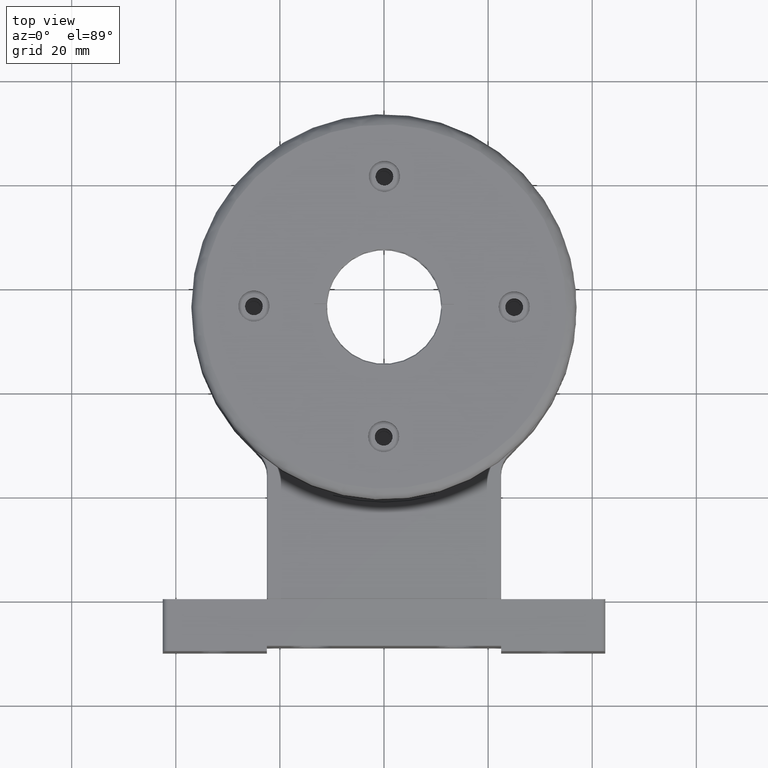
[diagram: clean part render]
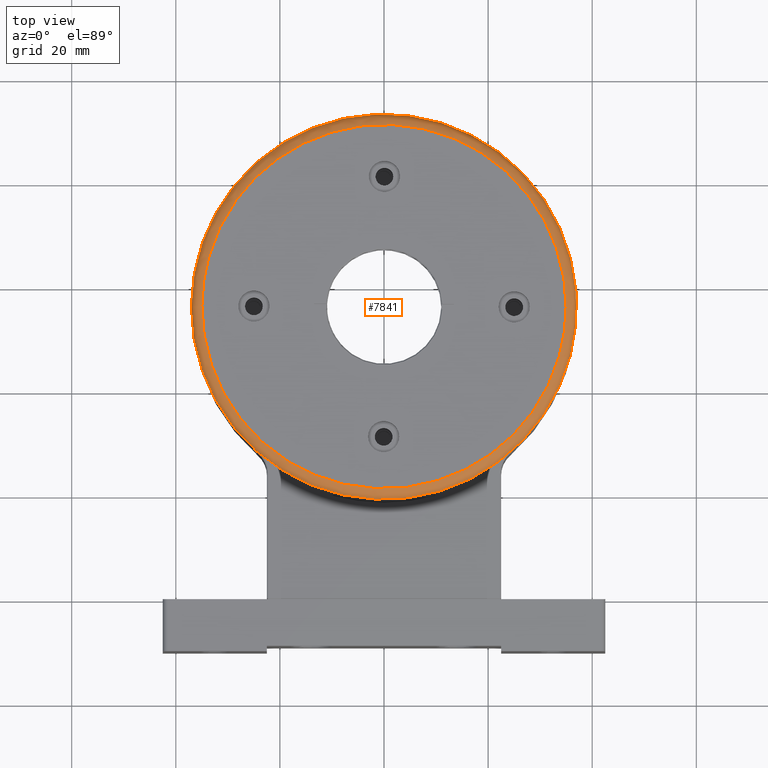
[diagram: same view with one face highlighted and labeled with its STEP entity id]
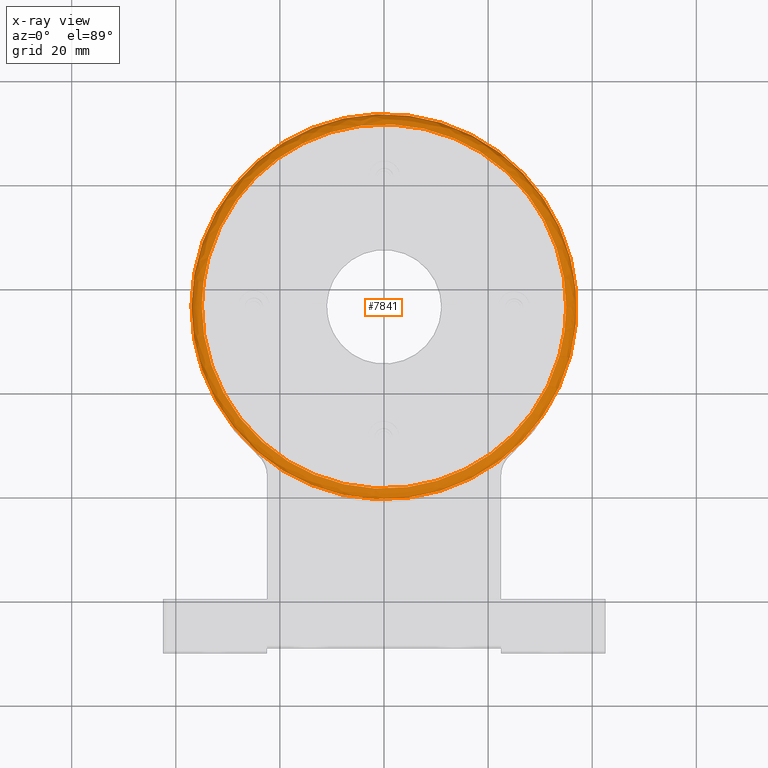
[diagram: x-ray of the same camera — body ghosted, the highlighted face saturated]
A machine part, top view. The second image highlights one B-rep face of the part: STEP entity #7841.
The next image is the same camera in x-ray: the body ghosted, the highlighted face saturated — about 0% of this face is hidden behind the body in this view.
In plain terms, the highlighted face is a freeform B-spline surface patch.
Its self-contained STEP definition (entity closure, byte-faithful):
#20 = CARTESIAN_POINT ( 'NONE',  ( 13.11857359999238959, 88.44848916850000364, 39.99999999999994316 ) ) ;
#22 = CARTESIAN_POINT ( 'NONE',  ( -7.445305812659806399, 21.79892618697274287, 39.99999999999995026 ) ) ;
#32 = FACE_OUTER_BOUND ( 'NONE', #7508, .T. ) ;
#83 = CARTESIAN_POINT ( 'NONE',  ( 32.75982494111806886, 68.32194760139236678, 39.99999999999989342 ) ) ;
#86 = CARTESIAN_POINT ( 'NONE',  ( 6.133215838620476923, 21.54154989447624757, 39.99999999999993605 ) ) ;
#157 = CARTESIAN_POINT ( 'NONE',  ( 29.90462150346780135, 74.18990699711497427, 39.99999999999989342 ) ) ;
#159 = CARTESIAN_POINT ( 'NONE',  ( -13.05002223999467148, 23.52388181536817058, 39.99999999999997868 ) ) ;
#175 = CARTESIAN_POINT ( 'NONE',  ( -34.99984086352086621, 56.10554396340679517, 40.00000000000003553 ) ) ;
#227 = CARTESIAN_POINT ( 'NONE',  ( 13.46049257120940545, 88.30874447367253310, 39.99999999999994316 ) ) ;
#229 = CARTESIAN_POINT ( 'NONE',  ( 18.18990699708898973, 26.09537849651978547, 39.99999999999990763 ) ) ;
#244 = CARTESIAN_POINT ( 'NONE',  ( 36.17140841191813649, 55.89092310960256071, 39.99999999999988631 ) ) ;
#291 = CARTESIAN_POINT ( 'NONE',  ( 33.26071331800444852, 66.92261578921474552, 39.99999999999989342 ) ) ;
#366 = CARTESIAN_POINT ( 'NONE',  ( -28.03240252552636491, 76.97241446931919029, 40.00000000000002132 ) ) ;
#439 = CARTESIAN_POINT ( 'NONE',  ( -10.92261578913473663, 89.26071331802451425, 40.00000000000001421 ) ) ;
#501 = CARTESIAN_POINT ( 'NONE',  ( -18.62839821842914745, 85.63144602568404196, 40.00000000000002132 ) ) ;
#508 = B_SPLINE_CURVE_WITH_KNOTS ( 'NONE', 3,
 ( #12719, #1190, #7415, #10744, #8359, #4411, #7621, #3465, #11770, #9442, #6329, #10474, #291, #6464, #83, #2364, #9583, #11568, #2433, #6602, #2223, #12652, #157, #11628, #10611, #8426, #5579, #5298, #8496, #12586, #1119, #12515, #11505, #6538, #1331, #1395, #2289, #3254, #3188, #9516, #4346, #227, #3386, #20, #6391, #8558, #3319, #5369, #7550, #2155, #10680, #5509, #10536, #4203, #7481, #11704, #4480, #8630, #12793, #7348, #11092, #3671, #9791, #8708, #2498, #1681, #2707, #3535, #439, #10816, #4829, #9860, #8974, #2572, #11903, #13125, #4762, #4555, #5859, #501, #1610, #11026, #5789, #5654, #4690, #4624, #5724, #366, #8775, #6743, #12925, #7684, #11831, #6941, #10890, #6671, #7896, #9928, #1544, #12039, #2777, #6874, #9999, #8911, #7828, #1474, #12864, #1743, #8837, #9718, #6811, #3593, #7753, #641 ),
 .UNSPECIFIED., .F., .F.,
 ( 4, 1, 1, 1, 1, 1, 2, 2, 1, 1, 1, 1, 1, 2, 2, 1, 1, 1, 1, 2, 2, 2, 1, 1, 1, 1, 2, 2, 1, 1, 1, 1, 1, 2, 2, 1, 1, 1, 1, 1, 2, 2, 2, 1, 1, 1, 1, 1, 2, 2, 1, 1, 1, 1, 1, 2, 2, 1, 1, 1, 1, 2, 2, 2, 1, 1, 1, 1, 2, 2, 1, 1, 1, 1, 1, 2, 2, 1, 1, 1, 1, 1, 2, 2, 4 ),
 ( 0.000000000000000000, 0.03125000000000903444, 0.04687500000001345452, 0.05468750000001555006, 0.05859375000001658396, 0.06054687500001711825, 0.06152343750001727785, 0.06250000000001744438, 0.09375000000002380041, 0.1093750000000269784, 0.1171875000000287825, 0.1210937500000299066, 0.1230468750000304201, 0.1240234375000306838, 0.1250000000000309197, 0.1562500000000317246, 0.1718750000000321410, 0.1796875000000325018, 0.1835937500000325018, 0.1855468750000325295, 0.1875000000000325295, 0.2500000000000299760, 0.2812500000000288658, 0.2968750000000281997, 0.3046875000000278111, 0.3085937500000275890, 0.3105468750000274225, 0.3125000000000272560, 0.3437500000000242029, 0.3593750000000226485, 0.3671875000000219269, 0.3710937500000215383, 0.3730468750000212608, 0.3740234375000211497, 0.3750000000000210387, 0.4062500000000209277, 0.4218750000000209277, 0.4296875000000209277, 0.4335937500000209277, 0.4355468750000209277, 0.4365234375000208722, 0.4375000000000208167, 0.5000000000000178746, 0.5312500000000163203, 0.5468750000000156541, 0.5546875000000152101, 0.5585937500000150990, 0.5605468750000149880, 0.5615234375000148770, 0.5625000000000148770, 0.5937500000000129896, 0.6093750000000121014, 0.6171875000000116573, 0.6210937500000114353, 0.6230468750000113243, 0.6240234375000113243, 0.6250000000000112133, 0.6562500000000093259, 0.6718750000000084377, 0.6796875000000078826, 0.6835937500000075495, 0.6855468750000073275, 0.6875000000000071054, 0.7500000000000024425, 0.7812500000000001110, 0.7968749999999990008, 0.8046874999999985567, 0.8085937499999984457, 0.8105468749999981126, 0.8124999999999977796, 0.8437499999999937828, 0.8593749999999918954, 0.8671874999999908962, 0.8710937499999904521, 0.8730468749999901190, 0.8740234374999900080, 0.8749999999999897859, 0.9062499999999917843, 0.9218749999999930056, 0.9296874999999933387, 0.9335937499999935607, 0.9355468749999936717, 0.9365234374999937828, 0.9374999999999937828, 1.000000000000000000 ),
 .UNSPECIFIED. ) ;
#539 = CARTESIAN_POINT ( 'NONE',  ( -13.93656834835468850, 23.89188270323602836, 39.99999999999997158 ) ) ;
#641 = CARTESIAN_POINT ( 'NONE',  ( -34.99984086352086621, 56.10554396340680228, 40.00000000000003553 ) ) ;
#729 = CARTESIAN_POINT ( 'NONE',  ( -29.43279551244769010, 37.06020000171097450, 40.00000000000000711 ) ) ;
#798 = CARTESIAN_POINT ( 'NONE',  ( -19.30233473393567323, 26.80367732136305392, 39.99999999999999289 ) ) ;
#1000 = FACE_OUTER_BOUND ( 'NONE', #8338, .T. ) ;
#1057 = CARTESIAN_POINT ( 'NONE',  ( -10.32334029312213453, 22.52314859403500336, 39.99999999999997868 ) ) ;
#1071 = CARTESIAN_POINT ( 'NONE',  ( -36.99983177000775925, 56.11157504703002274, 39.17157287525386522 ) ) ;
#1119 = CARTESIAN_POINT ( 'NONE',  ( 22.63520544684118363, 82.74364260493582890, 39.99999999999991473 ) ) ;
#1121 = CARTESIAN_POINT ( 'NONE',  ( -6.959726640633069117, 21.69841525138556193, 39.99999999999996447 ) ) ;
#1190 = CARTESIAN_POINT ( 'NONE',  ( 35.00306838916778673, 56.96474826719884987, 39.99999999999988631 ) ) ;
#1193 = CARTESIAN_POINT ( 'NONE',  ( 28.94371133599353030, 36.31997929494774979, 39.99999999999989342 ) ) ;
#1266 = CARTESIAN_POINT ( 'NONE',  ( 30.78298996030571288, 39.27054386853081525, 39.99999999999987921 ) ) ;
#1331 = CARTESIAN_POINT ( 'NONE',  ( 19.49215727222414429, 85.06995108534435701, 39.99999999999991473 ) ) ;
#1395 = CARTESIAN_POINT ( 'NONE',  ( 19.36660681679766327, 85.15373499218669906, 39.99999999999992895 ) ) ;
#1398 = CARTESIAN_POINT ( 'NONE',  ( 32.92454512359866214, 44.07257206283721018, 39.99999999999988631 ) ) ;
#1401 = VERTEX_POINT ( 'NONE', #12174 ) ;
#1474 = CARTESIAN_POINT ( 'NONE',  ( -34.20107381302227623, 63.44530581268689673, 40.00000000000003553 ) ) ;
#1476 = CARTESIAN_POINT ( 'NONE',  ( 34.99338474008023780, 53.75351603654588928, 39.99999999999988631 ) ) ;
#1544 = CARTESIAN_POINT ( 'NONE',  ( -32.40689084292648658, 69.22131955979469353, 40.00000000000003553 ) ) ;
#1610 = CARTESIAN_POINT ( 'NONE',  ( -18.81536678531346851, 85.51250455340942835, 40.00000000000000000 ) ) ;
#1681 = CARTESIAN_POINT ( 'NONE',  ( -6.230002467481003947, 90.44108432658136110, 39.99999999999998579 ) ) ;
#1714 = CARTESIAN_POINT ( 'NONE',  ( -30.43355396243327249, 38.69600037347613153, 40.00000000000002132 ) ) ;
#1743 = CARTESIAN_POINT ( 'NONE',  ( -34.34967670223628744, 62.71630418763265880, 40.00000000000003553 ) ) ;
#1832 = CARTESIAN_POINT ( 'NONE',  ( -20.11513296276690355, 27.35479530273023130, 39.99999999999997868 ) ) ;
#2088 = CARTESIAN_POINT ( 'NONE',  ( 4.417960699609261077, 21.27256774209317669, 39.99999999999993605 ) ) ;
#2155 = CARTESIAN_POINT ( 'NONE',  ( 7.445305812718274296, 90.20107381300657323, 39.99999999999996447 ) ) ;
#2159 = CARTESIAN_POINT ( 'NONE',  ( 2.563618976004601535, 21.06512109418545364, 39.99999999999993605 ) ) ;
#2172 = CARTESIAN_POINT ( 'NONE',  ( -36.77668167594772086, 130.1112385870456762, 38.00000000000008527 ) ) ;
#2223 = CARTESIAN_POINT ( 'NONE',  ( 31.42174489363064893, 71.49648517410402349, 39.99999999999989342 ) ) ;
#2226 = CARTESIAN_POINT ( 'NONE',  ( 19.00059929646745260, 26.60641488936466814, 39.99999999999990763 ) ) ;
#2289 = CARTESIAN_POINT ( 'NONE',  ( 19.30233473393600008, 85.19632267863711661, 39.99999999999992895 ) ) ;
#2292 = CARTESIAN_POINT ( 'NONE',  ( 7.381486784921821531, 21.76839340377978260, 39.99999999999992184 ) ) ;
#2364 = CARTESIAN_POINT ( 'NONE',  ( 32.67128193233130418, 68.55373945965915539, 39.99999999999990763 ) ) ;
#2366 = CARTESIAN_POINT ( 'NONE',  ( 0.9646605808961420392, 20.99691565895773948, 39.99999999999994316 ) ) ;
#2433 = CARTESIAN_POINT ( 'NONE',  ( 32.59479175402447737, 68.75072068832923833, 39.99999999999990052 ) ) ;
#2498 = CARTESIAN_POINT ( 'NONE',  ( -6.199062084761604474, 90.44666466910511815, 40.00000000000000000 ) ) ;
#2572 = CARTESIAN_POINT ( 'NONE',  ( -12.71905699232242171, 88.60715889121040334, 39.99999999999999289 ) ) ;
#2574 = CARTESIAN_POINT ( 'NONE',  ( 33.98274382848978092, 47.58859877923993054, 39.99999999999987921 ) ) ;
#2679 = CARTESIAN_POINT ( 'NONE',  ( -34.44108432658190821, 49.76999753252079728, 40.00000000000004263 ) ) ;
#2707 = CARTESIAN_POINT ( 'NONE',  ( -7.381486784849454530, 90.23160659624288371, 39.99999999999998579 ) ) ;
#2744 = CARTESIAN_POINT ( 'NONE',  ( -32.59479175402360340, 43.24927931166936190, 40.00000000000002842 ) ) ;
#2777 = CARTESIAN_POINT ( 'NONE',  ( -32.47611818463031597, 69.05002223999726141, 40.00000000000004263 ) ) ;
#2870 = CARTESIAN_POINT ( 'NONE',  ( -33.84757868495275801, 46.96604172723056081, 40.00000000000001421 ) ) ;
#3121 = CARTESIAN_POINT ( 'NONE',  ( 11.85713807592793323, 23.06742756643324910, 39.99999999999990763 ) ) ;
#3188 = CARTESIAN_POINT ( 'NONE',  ( 16.72945613145770949, 86.78298996030551393, 39.99999999999994316 ) ) ;
#3190 = CARTESIAN_POINT ( 'NONE',  ( -6.505326938411899462, 21.60985890470914228, 39.99999999999996447 ) ) ;
#3254 = CARTESIAN_POINT ( 'NONE',  ( 18.25274414494631259, 85.88707231090577920, 39.99999999999993605 ) ) ;
#3256 = CARTESIAN_POINT ( 'NONE',  ( 12.75072068833034855, 23.40520824597612304, 39.99999999999992184 ) ) ;
#3319 = CARTESIAN_POINT ( 'NONE',  ( 11.92742793723630790, 88.92454512357193153, 39.99999999999995026 ) ) ;
#3321 = CARTESIAN_POINT ( 'NONE',  ( 5.342354127072791670, 21.40825947608255930, 39.99999999999992895 ) ) ;
#3333 = CARTESIAN_POINT ( 'NONE',  ( 36.99983177000786583, 55.88842495297000568, 37.99999999999987921 ) ) ;
#3360 = ORIENTED_EDGE ( 'NONE', *, *, #13231, .F. ) ;
#3386 = CARTESIAN_POINT ( 'NONE',  ( 13.22131955978539430, 88.40689084293120459, 39.99999999999994316 ) ) ;
#3389 = CARTESIAN_POINT ( 'NONE',  ( 31.68952518937148000, 41.12036108017552039, 39.99999999999988631 ) ) ;
#3406 = CARTESIAN_POINT ( 'NONE',  ( -35.21092879033439971, -13.89413776363504560, 39.99999999999999289 ) ) ;
#3465 = CARTESIAN_POINT ( 'NONE',  ( 34.45844815048451437, 62.13322658533039089, 39.99999999999987921 ) ) ;
#3535 = CARTESIAN_POINT ( 'NONE',  ( -9.033958272666605893, 89.84757868498840594, 40.00000000000000000 ) ) ;
#3537 = CARTESIAN_POINT ( 'NONE',  ( 34.36982392932547015, 49.38815533516250866, 39.99999999999988631 ) ) ;
#3593 = CARTESIAN_POINT ( 'NONE',  ( -34.79221322326672805, 60.36878925008104346, 40.00000000000002842 ) ) ;
#3637 = CARTESIAN_POINT ( 'NONE',  ( -28.03660107628403964, 34.91000018029846075, 40.00000000000000711 ) ) ;
#3671 = CARTESIAN_POINT ( 'NONE',  ( -5.803856482215495660, 90.51590255441107047, 39.99999999999998579 ) ) ;
#3673 = CARTESIAN_POINT ( 'NONE',  ( 33.47685140596446729, 45.67665970687301069, 39.99999999999988631 ) ) ;
#3710 = CARTESIAN_POINT ( 'NONE',  ( -32.14932457189968318, 42.11401243335942013, 40.00000000000002842 ) ) ;
#3738 = CARTESIAN_POINT ( 'NONE',  ( 34.34967670223769431, 49.28369581237431163, 39.99999999999988631 ) ) ;
#3769 = CARTESIAN_POINT ( 'NONE',  ( -34.45844815048441490, 49.86677341466626245, 40.00000000000002842 ) ) ;
#4054 = CARTESIAN_POINT ( 'NONE',  ( 4.913026226478147657E-14, 56.00000000000002132, 37.99999999999996447 ) ) ;
#4140 = CARTESIAN_POINT ( 'NONE',  ( 12.32194760139704925, 23.24017505888498647, 39.99999999999990052 ) ) ;
#4155 = CARTESIAN_POINT ( 'NONE',  ( -35.95325463112310160, 128.4518937142336483, 40.00000000000007105 ) ) ;
#4203 = CARTESIAN_POINT ( 'NONE',  ( 6.542174846459739790, 90.38315238956468534, 39.99999999999997868 ) ) ;
#4205 = CARTESIAN_POINT ( 'NONE',  ( -13.11857359999273953, 23.55151083149979385, 39.99999999999997868 ) ) ;
#4216 = CARTESIAN_POINT ( 'NONE',  ( 34.99984086352096568, 55.89445603659325457, 39.99999999999988631 ) ) ;
#4244 = EDGE_CURVE ( 'NONE', #12379, #10826, #508, .T. ) ;
#4278 = CARTESIAN_POINT ( 'NONE',  ( 6.199062084762354985, 21.55333533089448395, 39.99999999999992895 ) ) ;
#4346 = CARTESIAN_POINT ( 'NONE',  ( 13.93656834835206126, 88.10811729676240134, 39.99999999999994316 ) ) ;
#4362 = CARTESIAN_POINT ( 'NONE',  ( -36.77668167594773507, 130.1112385870456478, 39.17157287525389364 ) ) ;
#4411 = CARTESIAN_POINT ( 'NONE',  ( 34.51589601165291299, 61.80389244730496046, 39.99999999999988631 ) ) ;
#4414 = CARTESIAN_POINT ( 'NONE',  ( 32.44848916850004628, 42.88142640000686612, 39.99999999999988631 ) ) ;
#4480 = CARTESIAN_POINT ( 'NONE',  ( 2.245953051991781635, 90.99335390849225291, 39.99999999999995737 ) ) ;
#4555 = CARTESIAN_POINT ( 'NONE',  ( -17.30399962650928458, 86.43355396244277244, 40.00000000000000711 ) ) ;
#4601 = ORIENTED_EDGE ( 'NONE', *, *, #8054, .T. ) ;
#4624 = CARTESIAN_POINT ( 'NONE',  ( -25.53072454062848706, 79.97170279536472037, 40.00000000000002842 ) ) ;
#4690 = CARTESIAN_POINT ( 'NONE',  ( -22.96053280716512290, 82.52636141112229495, 40.00000000000000711 ) ) ;
#4693 = CARTESIAN_POINT ( 'NONE',  ( 34.99984086352095858, 55.89445603659325457, 39.99999999999988631 ) ) ;
#4762 = CARTESIAN_POINT ( 'NONE',  ( -15.49648517400365932, 87.42174489368566981, 40.00000000000000711 ) ) ;
#4764 = CARTESIAN_POINT ( 'NONE',  ( 34.38315238956636222, 49.45782515354488140, 39.99999999999987210 ) ) ;
#4829 = CARTESIAN_POINT ( 'NONE',  ( -12.32194760136730949, 88.75982494112432164, 40.00000000000000000 ) ) ;
#4860 = CARTESIAN_POINT ( 'NONE',  ( -32.63287008658777211, 43.34705250918459285, 40.00000000000002842 ) ) ;
#4918 = CARTESIAN_POINT ( 'NONE',  ( -26.52636141113703161, 33.03946719284972033, 40.00000000000000711 ) ) ;
#5170 = CARTESIAN_POINT ( 'NONE',  ( 18.81536678531917062, 26.48749544659424515, 39.99999999999989342 ) ) ;
#5239 = CARTESIAN_POINT ( 'NONE',  ( 32.30874447367259705, 42.53950742878792823, 39.99999999999987921 ) ) ;
#5251 = CARTESIAN_POINT ( 'NONE',  ( 35.95325463112319397, -16.45189371423360924, 39.99999999999984368 ) ) ;
#5298 = CARTESIAN_POINT ( 'NONE',  ( 28.03660107623556996, 77.08999981975829030, 39.99999999999992184 ) ) ;
#5300 = CARTESIAN_POINT ( 'NONE',  ( -8.411401220756401287, 22.01725617150984604, 39.99999999999996447 ) ) ;
#5369 = CARTESIAN_POINT ( 'NONE',  ( 10.32334029325565439, 89.47685140591767095, 39.99999999999994316 ) ) ;
#5371 = CARTESIAN_POINT ( 'NONE',  ( 29.06995108534124128, 36.50784272777278971, 39.99999999999989342 ) ) ;
#5444 = CARTESIAN_POINT ( 'NONE',  ( 17.30399962653998003, 25.56644603757711920, 39.99999999999989342 ) ) ;
#5460 = CARTESIAN_POINT ( 'NONE',  ( 37.22298186406789000, 129.8880884929856450, 37.99999999999992184 ) ) ;
#5509 = CARTESIAN_POINT ( 'NONE',  ( 6.716304187641352286, 90.34967670223201708, 39.99999999999996447 ) ) ;
#5556 =( BOUNDED_SURFACE ( )  B_SPLINE_SURFACE ( 3, 3, ( 
 ( #4216, #13486, #7433, #175, #3406, #8371, #12603 ),
 ( #11522, #11582, #4155, #12669, #11646, #5251, #244 ),
 ( #10425, #12530, #4362, #1071, #7364, #7568, #7495 ),
 ( #8513, #5460, #2172, #6483, #8574, #9394, #3333 ) ),
 .UNSPECIFIED., .F., .T., .F. ) 
 B_SPLINE_SURFACE_WITH_KNOTS ( ( 4, 4 ),
 ( 4, 3, 4 ),
 ( 0.000000000000000000, 1.000000000000000000 ),
 ( 0.000000000000000000, 0.5000000000000000000, 1.000000000000000000 ),
 .UNSPECIFIED. ) 
 GEOMETRIC_REPRESENTATION_ITEM ( )  RATIONAL_B_SPLINE_SURFACE ( (
 ( 1.000000000000000000, 0.3333333333333333148, 0.3333333333333333148, 1.000000000000000000, 0.3333333333333333148, 0.3333333333333333148, 1.000000000000000000),
 ( 0.8047378541243654926, 0.2682459513747884605, 0.2682459513747884605, 0.8047378541243654926, 0.2682459513747884605, 0.2682459513747884605, 0.8047378541243654926),
 ( 0.8047378541243654926, 0.2682459513747884605, 0.2682459513747884605, 0.8047378541243654926, 0.2682459513747884605, 0.2682459513747884605, 0.8047378541243654926),
 ( 1.000000000000000000, 0.3333333333333333148, 0.3333333333333333148, 1.000000000000000000, 0.3333333333333333148, 0.3333333333333333148, 1.000000000000000000) ) ) 
 REPRESENTATION_ITEM ( '' )  SURFACE ( )  );
#5579 = CARTESIAN_POINT ( 'NONE',  ( 29.39358511063647228, 75.00059929646634771, 39.99999999999989342 ) ) ;
#5627 = B_SPLINE_CURVE_WITH_KNOTS ( 'NONE', 3,
 ( #11181, #7865, #11126, #11062, #8949, #13099, #8052, #3769, #8806, #2679, #7927, #2870, #6842, #12012, #5951, #12074, #4860, #8880, #2744, #3710, #6908, #1714, #12964, #10085, #5897, #729, #9002, #3637, #4918, #12201, #13221, #7029, #1832, #9896, #6010, #10150, #798, #7796, #11945, #6781, #539, #12722, #12518, #4205, #159, #9444, #10539, #1057, #5300, #22, #1121, #13473, #9382, #7351, #3190, #12451, #7279, #2366, #2159, #2088, #3321, #6331, #10477, #86, #4278, #7483, #2292, #8498, #12589, #3121, #4140, #10682, #8428, #8300, #3256, #11437, #7418, #5444, #229, #6541, #5170, #11570, #2226, #6393, #6466, #6264, #9518, #7552, #12655, #1193, #5371, #11706, #11631, #10410, #1266, #3389, #8560, #5239, #9586, #4414, #7624, #7756, #1398, #3673, #2574, #12866, #13064, #3738, #3537, #4764, #9931, #6605, #1476, #4693 ),
 .UNSPECIFIED., .F., .F.,
 ( 4, 1, 1, 1, 1, 1, 2, 2, 1, 1, 1, 1, 1, 2, 2, 1, 1, 1, 1, 2, 2, 2, 1, 1, 1, 1, 2, 2, 1, 1, 1, 1, 1, 2, 2, 1, 1, 1, 1, 1, 2, 2, 2, 1, 1, 1, 1, 1, 2, 2, 1, 1, 1, 1, 1, 2, 2, 1, 1, 1, 1, 2, 2, 2, 1, 1, 1, 1, 2, 2, 1, 1, 1, 1, 1, 2, 2, 1, 1, 1, 1, 1, 2, 2, 4 ),
 ( 0.000000000000000000, 0.03125000000000380251, 0.04687500000000581479, 0.05468750000000683481, 0.05859375000000733441, 0.06054687500000768136, 0.06152343750000785483, 0.06250000000000802136, 0.09375000000000927036, 0.1093750000000098949, 0.1171875000000102279, 0.1210937500000104361, 0.1230468750000106304, 0.1240234375000107137, 0.1250000000000107969, 0.1562500000000126010, 0.1718750000000134892, 0.1796875000000139055, 0.1835937500000140721, 0.1855468750000141553, 0.1875000000000142664, 0.2500000000000139888, 0.2812500000000138778, 0.2968750000000138778, 0.3046875000000138223, 0.3085937500000138223, 0.3105468750000138778, 0.3125000000000138778, 0.3437500000000144329, 0.3593750000000147660, 0.3671875000000149325, 0.3710937500000149880, 0.3730468750000150435, 0.3740234375000150435, 0.3750000000000150435, 0.4062500000000154876, 0.4218750000000157652, 0.4296875000000159317, 0.4335937500000159872, 0.4355468750000160427, 0.4365234375000160427, 0.4375000000000160427, 0.5000000000000164313, 0.5312500000000166533, 0.5468750000000167644, 0.5546875000000168754, 0.5585937500000168754, 0.5605468750000168754, 0.5615234375000168754, 0.5625000000000168754, 0.5937500000000168754, 0.6093750000000168754, 0.6171875000000167644, 0.6210937500000168754, 0.6230468750000168754, 0.6240234375000168754, 0.6250000000000168754, 0.6562500000000159872, 0.6718750000000155431, 0.6796875000000154321, 0.6835937500000153211, 0.6855468750000152101, 0.6875000000000150990, 0.7500000000000125455, 0.7812500000000112133, 0.7968750000000104361, 0.8046875000000101030, 0.8085937500000098810, 0.8105468750000097700, 0.8125000000000096589, 0.8437500000000108802, 0.8593750000000114353, 0.8671875000000116573, 0.8710937500000118794, 0.8730468750000119904, 0.8740234375000119904, 0.8750000000000119904, 0.9062500000000086597, 0.9218750000000069944, 0.9296875000000061062, 0.9335937500000056621, 0.9355468750000054401, 0.9365234375000053291, 0.9375000000000052180, 1.000000000000000000 ),
 .UNSPECIFIED. ) ;
#5654 = CARTESIAN_POINT ( 'NONE',  ( -21.08999981970150017, 84.03660107628411424, 40.00000000000001421 ) ) ;
#5724 = CARTESIAN_POINT ( 'NONE',  ( -26.74364260488679435, 78.63520544689662017, 40.00000000000004263 ) ) ;
#5789 = CARTESIAN_POINT ( 'NONE',  ( -19.00059929646804591, 85.39358511063490198, 40.00000000000000711 ) ) ;
#5859 = CARTESIAN_POINT ( 'NONE',  ( -18.18990699707103076, 85.90462150349183901, 40.00000000000000000 ) ) ;
#5897 = CARTESIAN_POINT ( 'NONE',  ( -29.51250455340764844, 37.18463321468384208, 40.00000000000002132 ) ) ;
#5951 = CARTESIAN_POINT ( 'NONE',  ( -32.75982494111590881, 43.67805239860855693, 40.00000000000002132 ) ) ;
#6010 = CARTESIAN_POINT ( 'NONE',  ( -19.49215727222988903, 26.93004891466060258, 39.99999999999999289 ) ) ;
#6119 = CARTESIAN_POINT ( 'NONE',  ( 34.99984086352095858, 55.89445603659325457, 39.99999999999988631 ) ) ;
#6264 = CARTESIAN_POINT ( 'NONE',  ( 25.53072454064341912, 32.02829720465393137, 39.99999999999988631 ) ) ;
#6329 = CARTESIAN_POINT ( 'NONE',  ( 34.23160659622759283, 63.38148678491044308, 39.99999999999987210 ) ) ;
#6331 = CARTESIAN_POINT ( 'NONE',  ( 5.803856482219860169, 21.48409744558611223, 39.99999999999992895 ) ) ;
#6391 = CARTESIAN_POINT ( 'NONE',  ( 13.05002223999454358, 88.47611818463172995, 39.99999999999995026 ) ) ;
#6393 = CARTESIAN_POINT ( 'NONE',  ( 21.08999981972417714, 27.96339892373056912, 39.99999999999988631 ) ) ;
#6464 = CARTESIAN_POINT ( 'NONE',  ( 32.93257243357241748, 67.85713807591920954, 39.99999999999989342 ) ) ;
#6466 = CARTESIAN_POINT ( 'NONE',  ( 22.96053280713556433, 29.47363858884049392, 39.99999999999989342 ) ) ;
#6483 = CARTESIAN_POINT ( 'NONE',  ( -36.99983177000776635, 56.11157504703004406, 38.00000000000004974 ) ) ;
#6538 = CARTESIAN_POINT ( 'NONE',  ( 19.68002070504694956, 84.94371133599887003, 39.99999999999992895 ) ) ;
#6541 = CARTESIAN_POINT ( 'NONE',  ( 18.62839821843880728, 26.36855397432221793, 39.99999999999988631 ) ) ;
#6602 = CARTESIAN_POINT ( 'NONE',  ( 32.14932457187553183, 69.88598756668689305, 39.99999999999989342 ) ) ;
#6605 = CARTESIAN_POINT ( 'NONE',  ( 34.79221322326682753, 51.63121074991892812, 39.99999999999988631 ) ) ;
#6671 = CARTESIAN_POINT ( 'NONE',  ( -31.68952518934230866, 70.87963891987374154, 40.00000000000004974 ) ) ;
#6743 = CARTESIAN_POINT ( 'NONE',  ( -28.94371133598733792, 75.68002070505993117, 40.00000000000002132 ) ) ;
#6781 = CARTESIAN_POINT ( 'NONE',  ( -14.87963891982047748, 24.31047481062597981, 39.99999999999999289 ) ) ;
#6811 = CARTESIAN_POINT ( 'NONE',  ( -34.39014058010901920, 62.50532967599378509, 40.00000000000002842 ) ) ;
#6842 = CARTESIAN_POINT ( 'NONE',  ( -33.26071331799774811, 45.07738421078814639, 40.00000000000000711 ) ) ;
#6874 = CARTESIAN_POINT ( 'NONE',  ( -32.49043762676101466, 69.01432610799909639, 40.00000000000004263 ) ) ;
#6908 = CARTESIAN_POINT ( 'NONE',  ( -31.42174489367296886, 40.50351482597691444, 40.00000000000001421 ) ) ;
#6941 = CARTESIAN_POINT ( 'NONE',  ( -29.88707231088368488, 74.25274414499034492, 40.00000000000003553 ) ) ;
#7029 = CARTESIAN_POINT ( 'NONE',  ( -20.97241446930941322, 27.96759747446384736, 40.00000000000000711 ) ) ;
#7198 = DIRECTION ( 'NONE',  ( 2.191762339234539386E-15, -4.880728349222902423E-16, 1.000000000000000000 ) ) ;
#7279 = CARTESIAN_POINT ( 'NONE',  ( -2.245953052012456652, 21.00664609152184781, 39.99999999999995026 ) ) ;
#7348 = CARTESIAN_POINT ( 'NONE',  ( -4.417960699595542273, 90.72743225789766086, 39.99999999999997868 ) ) ;
#7351 = CARTESIAN_POINT ( 'NONE',  ( -6.542174846454915205, 21.61684761043369818, 39.99999999999995737 ) ) ;
#7364 = CARTESIAN_POINT ( 'NONE',  ( -37.22298186406779763, -17.88808849298558457, 39.17157287525382969 ) ) ;
#7391 = AXIS2_PLACEMENT_3D ( 'NONE', #4054, #7198, #13386 ) ;
#7415 = CARTESIAN_POINT ( 'NONE',  ( 34.93485099003417815, 58.56377242703438668, 39.99999999999989342 ) ) ;
#7418 = CARTESIAN_POINT ( 'NONE',  ( 15.49648517404455639, 24.57825510634090449, 39.99999999999992184 ) ) ;
#7433 = CARTESIAN_POINT ( 'NONE',  ( -34.78875293670732560, 126.1052256904486342, 40.00000000000007105 ) ) ;
#7481 = CARTESIAN_POINT ( 'NONE',  ( 6.505326938411154281, 90.39014109529070140, 39.99999999999995026 ) ) ;
#7483 = CARTESIAN_POINT ( 'NONE',  ( 6.230002467478857220, 21.55891567341798876, 39.99999999999993605 ) ) ;
#7495 = CARTESIAN_POINT ( 'NONE',  ( 36.99983177000786583, 55.88842495296999857, 39.17157287525369469 ) ) ;
#7508 = EDGE_LOOP ( 'NONE', ( #3360, #11119 ) ) ;
#7550 = CARTESIAN_POINT ( 'NONE',  ( 8.411401220856571825, 89.98274382845465880, 39.99999999999995026 ) ) ;
#7552 = CARTESIAN_POINT ( 'NONE',  ( 28.03240252554591549, 35.02758553070528791, 39.99999999999989342 ) ) ;
#7568 = CARTESIAN_POINT ( 'NONE',  ( 36.77668167594783455, -18.11123858704562650, 39.17157287525367337 ) ) ;
#7621 = CARTESIAN_POINT ( 'NONE',  ( 34.47598216360842827, 62.03445265210783788, 39.99999999999988631 ) ) ;
#7624 = CARTESIAN_POINT ( 'NONE',  ( 32.47611818463177258, 42.94997776000510470, 39.99999999999987921 ) ) ;
#7684 = CARTESIAN_POINT ( 'NONE',  ( -29.15373499218318898, 75.36660681680154994, 40.00000000000004263 ) ) ;
#7753 = CARTESIAN_POINT ( 'NONE',  ( -34.99338474008010991, 58.24648396345419599, 40.00000000000003553 ) ) ;
#7756 = CARTESIAN_POINT ( 'NONE',  ( 32.49043762676090097, 42.98567389199993727, 39.99999999999988631 ) ) ;
#7796 = CARTESIAN_POINT ( 'NONE',  ( -18.25274414494977293, 26.11292768909215667, 39.99999999999999289 ) ) ;
#7828 = CARTESIAN_POINT ( 'NONE',  ( -33.98274382848161679, 64.41140122080285835, 40.00000000000003553 ) ) ;
#7841 = ADVANCED_FACE ( 'NONE', ( #1000, #32 ), #5556, .T. ) ;
#7865 = CARTESIAN_POINT ( 'NONE',  ( -35.00306838916777252, 55.03525173277359528, 40.00000000000003553 ) ) ;
#7896 = CARTESIAN_POINT ( 'NONE',  ( -32.10811729674547621, 69.93656834838577652, 40.00000000000003553 ) ) ;
#7927 = CARTESIAN_POINT ( 'NONE',  ( -34.23160659622246982, 48.61851321509175250, 40.00000000000004263 ) ) ;
#8052 = CARTESIAN_POINT ( 'NONE',  ( -34.47598216360831458, 49.96554734788636409, 40.00000000000004263 ) ) ;
#8054 = EDGE_CURVE ( 'NONE', #1401, #1401, #8700, .T. ) ;
#8300 = CARTESIAN_POINT ( 'NONE',  ( 12.71905699232702425, 23.39284110879104261, 39.99999999999990763 ) ) ;
#8338 = EDGE_LOOP ( 'NONE', ( #4601 ) ) ;
#8359 = CARTESIAN_POINT ( 'NONE',  ( 34.59172831076356402, 61.34242126189828781, 39.99999999999987921 ) ) ;
#8371 = CARTESIAN_POINT ( 'NONE',  ( 34.78875293670742508, -14.10522569044857200, 39.99999999999985079 ) ) ;
#8426 = CARTESIAN_POINT ( 'NONE',  ( 29.43279551244480530, 74.93979999829477379, 39.99999999999990052 ) ) ;
#8428 = CARTESIAN_POINT ( 'NONE',  ( 12.65294749081714443, 23.36712991341248369, 39.99999999999992184 ) ) ;
#8496 = CARTESIAN_POINT ( 'NONE',  ( 26.52636141118571800, 78.96053280710926003, 39.99999999999990763 ) ) ;
#8498 = CARTESIAN_POINT ( 'NONE',  ( 9.033958272793144673, 22.15242131505118905, 39.99999999999991473 ) ) ;
#8513 = CARTESIAN_POINT ( 'NONE',  ( 36.99983177000786583, 55.88842495297000568, 37.99999999999987921 ) ) ;
#8558 = CARTESIAN_POINT ( 'NONE',  ( 13.01432610799782630, 88.49043762676174651, 39.99999999999993605 ) ) ;
#8560 = CARTESIAN_POINT ( 'NONE',  ( 32.10811729676254345, 42.06343165164294362, 39.99999999999988631 ) ) ;
#8574 = CARTESIAN_POINT ( 'NONE',  ( -37.22298186406781184, -17.88808849298559167, 38.00000000000000711 ) ) ;
#8630 = CARTESIAN_POINT ( 'NONE',  ( -0.9646605808856675290, 91.00308434103526167, 39.99999999999998579 ) ) ;
#8700 = CIRCLE ( 'NONE', #7391, 37.00000000000000000 ) ;
#8708 = CARTESIAN_POINT ( 'NONE',  ( -6.133215838619096694, 90.45845010552297083, 39.99999999999999289 ) ) ;
#8775 = CARTESIAN_POINT ( 'NONE',  ( -28.64520469726402752, 76.11513296277264828, 40.00000000000002132 ) ) ;
#8806 = CARTESIAN_POINT ( 'NONE',  ( -34.44666367990234335, 49.80093247765766762, 40.00000000000003553 ) ) ;
#8837 = CARTESIAN_POINT ( 'NONE',  ( -34.36982392932463171, 62.61184466484154143, 40.00000000000002842 ) ) ;
#8880 = CARTESIAN_POINT ( 'NONE',  ( -32.60715889120906752, 43.28094300767388347, 40.00000000000002132 ) ) ;
#8911 = CARTESIAN_POINT ( 'NONE',  ( -33.47685140595361730, 66.32334029318401747, 40.00000000000003553 ) ) ;
#8949 = CARTESIAN_POINT ( 'NONE',  ( -34.59172831076352139, 50.65757873808058775, 40.00000000000002842 ) ) ;
#8974 = CARTESIAN_POINT ( 'NONE',  ( -12.65294749080817560, 88.63287008659035848, 40.00000000000000000 ) ) ;
#9002 = CARTESIAN_POINT ( 'NONE',  ( -29.39358511063485579, 36.99940070353192567, 40.00000000000001421 ) ) ;
#9382 = CARTESIAN_POINT ( 'NONE',  ( -6.611844664837116525, 21.63017607067456183, 39.99999999999995737 ) ) ;
#9394 = CARTESIAN_POINT ( 'NONE',  ( 36.77668167594784165, -18.11123858704562650, 37.99999999999985789 ) ) ;
#9442 = CARTESIAN_POINT ( 'NONE',  ( 34.44108432658187269, 62.23000246747917430, 39.99999999999987210 ) ) ;
#9444 = CARTESIAN_POINT ( 'NONE',  ( -13.01432610800011958, 23.50956237323918430, 39.99999999999997868 ) ) ;
#9516 = CARTESIAN_POINT ( 'NONE',  ( 14.87963891981589626, 87.68952518937130947, 39.99999999999993605 ) ) ;
#9518 = CARTESIAN_POINT ( 'NONE',  ( 26.74364260491284284, 33.36479455313599374, 39.99999999999988631 ) ) ;
#9583 = CARTESIAN_POINT ( 'NONE',  ( 32.63287008658848265, 68.65294749081573400, 39.99999999999989342 ) ) ;
#9586 = CARTESIAN_POINT ( 'NONE',  ( 32.40689084293126854, 42.77868044021327165, 39.99999999999988631 ) ) ;
#9718 = CARTESIAN_POINT ( 'NONE',  ( -34.38315238956585773, 62.54217484645718628, 40.00000000000003553 ) ) ;
#9791 = CARTESIAN_POINT ( 'NONE',  ( -6.034434070144910400, 90.47598554403343485, 39.99999999999998579 ) ) ;
#9860 = CARTESIAN_POINT ( 'NONE',  ( -12.55373945964619153, 88.67128193233450872, 39.99999999999999289 ) ) ;
#9896 = CARTESIAN_POINT ( 'NONE',  ( -19.68002070505681544, 27.05628866400957477, 39.99999999999998579 ) ) ;
#9928 = CARTESIAN_POINT ( 'NONE',  ( -32.30874447366341684, 69.46049257122744791, 40.00000000000003553 ) ) ;
#9931 = CARTESIAN_POINT ( 'NONE',  ( 34.39014058010912578, 49.49467032400624333, 39.99999999999988631 ) ) ;
#9999 = CARTESIAN_POINT ( 'NONE',  ( -32.92454512359244490, 67.92742793719537531, 40.00000000000004263 ) ) ;
#10085 = CARTESIAN_POINT ( 'NONE',  ( -29.63144602568100083, 37.37160178156627666, 40.00000000000001421 ) ) ;
#10150 = CARTESIAN_POINT ( 'NONE',  ( -19.36660681680054097, 26.84626500781585534, 39.99999999999998579 ) ) ;
#10410 = CARTESIAN_POINT ( 'NONE',  ( 29.88707231090591421, 37.74725585504713621, 39.99999999999989342 ) ) ;
#10425 = CARTESIAN_POINT ( 'NONE',  ( 36.99983177000786583, 55.88842495296999857, 39.17157287525369469 ) ) ;
#10474 = CARTESIAN_POINT ( 'NONE',  ( 33.84757868496168953, 65.03395827277324770, 39.99999999999988631 ) ) ;
#10477 = CARTESIAN_POINT ( 'NONE',  ( 6.034434070147219664, 21.52401445596513341, 39.99999999999993605 ) ) ;
#10536 = CARTESIAN_POINT ( 'NONE',  ( 6.611844664846557862, 90.36982392932218033, 39.99999999999996447 ) ) ;
#10539 = CARTESIAN_POINT ( 'NONE',  ( -11.92742793715996896, 23.07545487640104653, 39.99999999999996447 ) ) ;
#10611 = CARTESIAN_POINT ( 'NONE',  ( 29.51250455340190726, 74.81536678532729923, 39.99999999999988631 ) ) ;
#10680 = CARTESIAN_POINT ( 'NONE',  ( 6.959726640664433361, 90.30158474860337492, 39.99999999999995026 ) ) ;
#10682 = CARTESIAN_POINT ( 'NONE',  ( 12.55373945966161742, 23.32871806767033007, 39.99999999999991473 ) ) ;
#10743 = CARTESIAN_POINT ( 'NONE',  ( -34.99984086352086621, 56.10554396340680228, 40.00000000000003553 ) ) ;
#10744 = CARTESIAN_POINT ( 'NONE',  ( 34.72741132107154982, 60.41807578788156974, 39.99999999999988631 ) ) ;
#10816 = CARTESIAN_POINT ( 'NONE',  ( -11.85713807587249491, 88.93257243358409880, 40.00000000000000000 ) ) ;
#10826 = VERTEX_POINT ( 'NONE', #10743 ) ;
#10890 = CARTESIAN_POINT ( 'NONE',  ( -30.78298996026687462, 72.72945613153478917, 40.00000000000003553 ) ) ;
#11026 = CARTESIAN_POINT ( 'NONE',  ( -18.93979999828763638, 85.43279551244862091, 40.00000000000001421 ) ) ;
#11062 = CARTESIAN_POINT ( 'NONE',  ( -34.72741132107157114, 51.58192421208222100, 40.00000000000004974 ) ) ;
#11092 = CARTESIAN_POINT ( 'NONE',  ( -5.342354127064751879, 90.59174052391207965, 39.99999999999998579 ) ) ;
#11119 = ORIENTED_EDGE ( 'NONE', *, *, #4244, .F. ) ;
#11126 = CARTESIAN_POINT ( 'NONE',  ( -34.93485099003420657, 53.43622757291733905, 40.00000000000003553 ) ) ;
#11181 = CARTESIAN_POINT ( 'NONE',  ( -34.99984086352086621, 56.10554396340680228, 40.00000000000003553 ) ) ;
#11437 = CARTESIAN_POINT ( 'NONE',  ( 13.88598756665291667, 23.85067542810822872, 39.99999999999990763 ) ) ;
#11505 = CARTESIAN_POINT ( 'NONE',  ( 20.11513296274840101, 84.64520469728552143, 39.99999999999992184 ) ) ;
#11522 = CARTESIAN_POINT ( 'NONE',  ( 36.17140841191813649, 55.89092310960256071, 39.99999999999988631 ) ) ;
#11568 = CARTESIAN_POINT ( 'NONE',  ( 32.60715889120948674, 68.71905699232628706, 39.99999999999989342 ) ) ;
#11570 = CARTESIAN_POINT ( 'NONE',  ( 18.93979999829061711, 26.56720448755326558, 39.99999999999990763 ) ) ;
#11582 = CARTESIAN_POINT ( 'NONE',  ( 36.38956219271305770, 128.2337399334387271, 39.99999999999991473 ) ) ;
#11628 = CARTESIAN_POINT ( 'NONE',  ( 29.63144602567114205, 74.62839821845273036, 39.99999999999989342 ) ) ;
#11631 = CARTESIAN_POINT ( 'NONE',  ( 29.19632267863714858, 36.69766526606450441, 39.99999999999989342 ) ) ;
#11646 = CARTESIAN_POINT ( 'NONE',  ( -36.38956219271296533, -16.23373993343867738, 40.00000000000000711 ) ) ;
#11704 = CARTESIAN_POINT ( 'NONE',  ( 4.368964455372240430, 90.79218025164516348, 39.99999999999995737 ) ) ;
#11706 = CARTESIAN_POINT ( 'NONE',  ( 29.15373499218511455, 36.63339318320082327, 39.99999999999990052 ) ) ;
#11770 = CARTESIAN_POINT ( 'NONE',  ( 34.44666367990244993, 62.19906752234069103, 39.99999999999989342 ) ) ;
#11831 = CARTESIAN_POINT ( 'NONE',  ( -29.19632267863842046, 75.30233473393320764, 40.00000000000002842 ) ) ;
#11903 = CARTESIAN_POINT ( 'NONE',  ( -12.75072068833095607, 88.59479175402346129, 39.99999999999999289 ) ) ;
#11945 = CARTESIAN_POINT ( 'NONE',  ( -16.72945613146382726, 25.21701003969084454, 39.99999999999998579 ) ) ;
#12012 = CARTESIAN_POINT ( 'NONE',  ( -32.93257243356848818, 44.14286192408250997, 40.00000000000002842 ) ) ;
#12039 = CARTESIAN_POINT ( 'NONE',  ( -32.44848916849721121, 69.11857359999774530, 40.00000000000002132 ) ) ;
#12074 = CARTESIAN_POINT ( 'NONE',  ( -32.67128193233013178, 43.44626054034133489, 40.00000000000002132 ) ) ;
#12174 = CARTESIAN_POINT ( 'NONE',  ( -36.99983177000777346, 56.11157504703003696, 38.00000000000004974 ) ) ;
#12201 = CARTESIAN_POINT ( 'NONE',  ( -23.97170279535725967, 30.46927545936402382, 40.00000000000000711 ) ) ;
#12379 = VERTEX_POINT ( 'NONE', #6119 ) ;
#12451 = CARTESIAN_POINT ( 'NONE',  ( -4.368964455318246287, 21.20781974836873829, 39.99999999999995737 ) ) ;
#12515 = CARTESIAN_POINT ( 'NONE',  ( 20.97241446927762354, 84.03240252556317103, 39.99999999999992184 ) ) ;
#12518 = CARTESIAN_POINT ( 'NONE',  ( -13.22131955978605866, 23.59310915706839040, 39.99999999999997868 ) ) ;
#12530 = CARTESIAN_POINT ( 'NONE',  ( 37.22298186406789711, 129.8880884929857018, 39.17157287525374443 ) ) ;
#12586 = CARTESIAN_POINT ( 'NONE',  ( 23.97170279533307280, 81.53072454065659258, 39.99999999999993605 ) ) ;
#12589 = CARTESIAN_POINT ( 'NONE',  ( 10.92261578922966159, 22.73928668200521130, 39.99999999999991473 ) ) ;
#12603 = CARTESIAN_POINT ( 'NONE',  ( 34.99984086352096568, 55.89445603659325457, 39.99999999999988631 ) ) ;
#12652 = CARTESIAN_POINT ( 'NONE',  ( 30.43355396240153254, 73.30399962658458435, 39.99999999999989342 ) ) ;
#12655 = CARTESIAN_POINT ( 'NONE',  ( 28.64520469727548857, 35.88486703724166205, 39.99999999999988631 ) ) ;
#12669 = CARTESIAN_POINT ( 'NONE',  ( -36.17140841191802991, 56.10907689039748902, 40.00000000000002132 ) ) ;
#12719 = CARTESIAN_POINT ( 'NONE',  ( 34.99984086352095858, 55.89445603659325457, 39.99999999999988631 ) ) ;
#12722 = CARTESIAN_POINT ( 'NONE',  ( -13.46049257121077325, 23.69125552632666398, 39.99999999999997868 ) ) ;
#12793 = CARTESIAN_POINT ( 'NONE',  ( -2.563618975986353021, 90.93487890580229305, 39.99999999999997868 ) ) ;
#12864 = CARTESIAN_POINT ( 'NONE',  ( -34.30158474861174511, 62.95972664064763791, 40.00000000000002842 ) ) ;
#12866 = CARTESIAN_POINT ( 'NONE',  ( 34.20107381302706528, 48.55469418733804332, 39.99999999999987210 ) ) ;
#12925 = CARTESIAN_POINT ( 'NONE',  ( -29.06995108533757133, 75.49215727223173644, 40.00000000000002842 ) ) ;
#12964 = CARTESIAN_POINT ( 'NONE',  ( -29.90462150348628256, 37.81009300292045339, 40.00000000000001421 ) ) ;
#13064 = CARTESIAN_POINT ( 'NONE',  ( 34.30158474861437412, 49.04027335936577003, 39.99999999999988631 ) ) ;
#13099 = CARTESIAN_POINT ( 'NONE',  ( -34.51589601165283483, 50.19610755268375613, 40.00000000000003553 ) ) ;
#13125 = CARTESIAN_POINT ( 'NONE',  ( -13.88598756662949718, 88.14932457190698756, 40.00000000000000711 ) ) ;
#13221 = CARTESIAN_POINT ( 'NONE',  ( -22.63520544688360658, 29.25635739510013877, 39.99999999999998579 ) ) ;
#13231 = EDGE_CURVE ( 'NONE', #10826, #12379, #5627, .T. ) ;
#13386 = DIRECTION ( 'NONE',  ( -0.9999954532434547350, 0.003015541811622012708, 2.250452076942884869E-15 ) ) ;
#13473 = CARTESIAN_POINT ( 'NONE',  ( -6.716304187625095068, 21.65032329776229147, 39.99999999999995026 ) ) ;
#13486 = CARTESIAN_POINT ( 'NONE',  ( 35.21092879033450629, 125.8941377636350580, 39.99999999999991473 ) ) ;